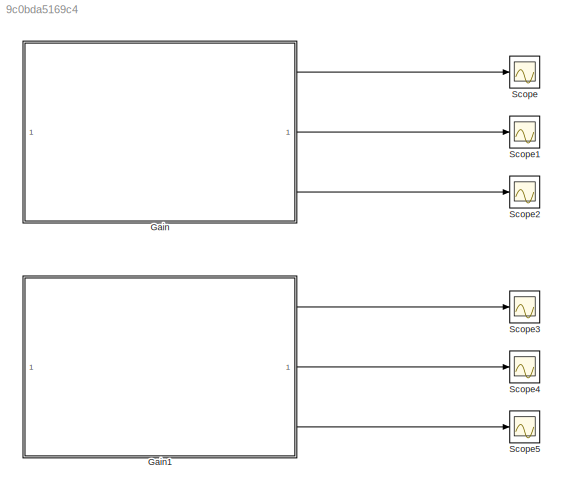
MODEL slx_9c0bda5169c4
KIND model
CONFIG AbsTol = auto
CONFIG EnableMultiTasking = off
CONFIG FixedStep = auto
CONFIG MaxStep = auto
CONFIG MinStep = auto
CONFIG RelTol = 1e-3
CONFIG SampleTimeConstraint = Unconstrained
CONFIG SolverName = FixedStepAuto
CONFIG StartTime = 0.0
CONFIG StopTime = 5.0
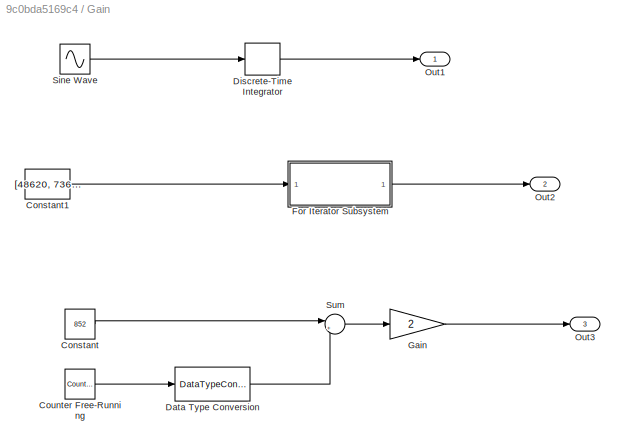
BLOCK [SubSystem] Gain
  RTWSystemCode = Reusable function
  TreatAsAtomicUnit = on
BLOCK [Constant] Gain/Constant
  OutDataTypeStr = uint32
  SampleTime = 200e-6
  Value = 852
BLOCK [Constant] Gain/Constant1
  OutDataTypeStr = single
  SampleTime = 600e-6
  Value = [48620, 736. 821, 732.492, 63.82]
BLOCK [Reference] Gain/Counter Free-Running  REF=simulink/Sources/Counter
Free-Running
  SourceBlock = simulink/Sources/Counter\nFree-Running
  SourceType = Counter Free-Running
BLOCK [DataTypeConversion] Gain/Data Type Conversion
  OutDataTypeStr = uint32
  RndMeth = Floor
  SaturateOnIntegerOverflow = off
BLOCK [DiscreteIntegrator] Gain/Discrete-Time Integrator
  ICPrevOutput = DiscIntNeverNeededParam
  ICPrevScaledInput = DiscIntNeverNeededParam
  InitialConditionSetting = Auto
  SampleTime = -1
  gainval = 2.0
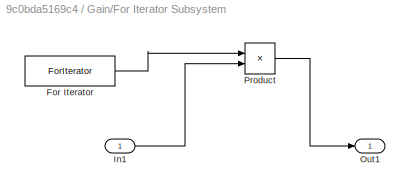
BLOCK [SubSystem] Gain/For Iterator Subsystem
  RTWSystemCode = Reusable function
  TreatAsAtomicUnit = on
BLOCK [ForIterator] Gain/For Iterator Subsystem/For Iterator
  IterationLimit = 250
BLOCK [Inport] Gain/For Iterator Subsystem/In1
BLOCK [Outport] Gain/For Iterator Subsystem/Out1
BLOCK [Product] Gain/For Iterator Subsystem/Product
BLOCK [Gain] Gain/Gain
  Gain = 2
  OutDataTypeStr = uint32
BLOCK [Outport] Gain/Out1
BLOCK [Outport] Gain/Out2
  Port = 2
BLOCK [Outport] Gain/Out3
  Port = 3
BLOCK [Sin] Gain/Sine Wave
  SampleTime = 0.001
  Samples = 20
  SineType = Sample based
BLOCK [Sum] Gain/Sum
  Inputs = |++
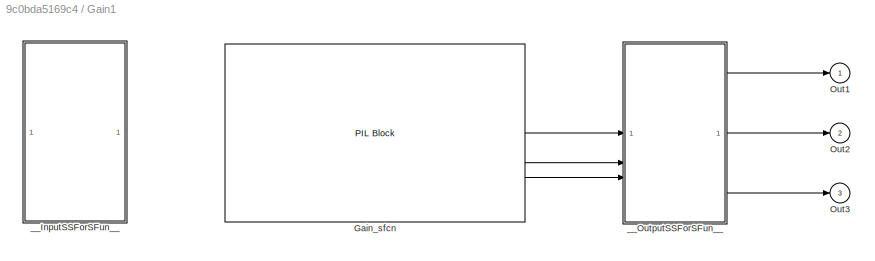
BLOCK [SubSystem] Gain1
  DialogController = pil_create_dialog
  LoadFcn = try\n   if ~strcmp(rtw.pil.getPILVersion, '24.2 (R2024b)_15')\n      set_param(gcb, 'DialogController', '');\n      set_param(gcb, 'DialogControllerArgs', '');\n   end\ncatch e\n      set_param(gcb, 'DialogController', '');\n      set_param(gcb, 'DialogControllerArgs', '');\nend
BLOCK [Reference] Gain1/Gain_sfcn  REF=pil_lib/PIL Block
  SourceBlock = pil_lib/PIL Block
  SourceType = XILBlock
BLOCK [Outport] Gain1/Out1
BLOCK [Outport] Gain1/Out2
  Port = 2
BLOCK [Outport] Gain1/Out3
  Port = 3
BLOCK [SubSystem] Gain1/__InputSSForSFun__
  PermitHierarchicalResolution = ExplicitOnly
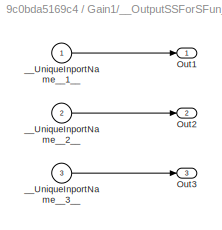
BLOCK [SubSystem] Gain1/__OutputSSForSFun__
  PermitHierarchicalResolution = ExplicitOnly
BLOCK [Outport] Gain1/__OutputSSForSFun__/Out1
BLOCK [Outport] Gain1/__OutputSSForSFun__/Out2
  Port = 2
BLOCK [Outport] Gain1/__OutputSSForSFun__/Out3
  Port = 3
BLOCK [Inport] Gain1/__OutputSSForSFun__/__UniqueInportName__1__
BLOCK [Inport] Gain1/__OutputSSForSFun__/__UniqueInportName__2__
  Port = 2
BLOCK [Inport] Gain1/__OutputSSForSFun__/__UniqueInportName__3__
  Port = 3
BLOCK [Scope] Scope
  Floating = off
  NumInputPorts = 1
  ScopeSpecificationString = Simulink.scopes.TimeScopeBlockCfg('CurrentConfiguration', extmgr.ConfigurationSet(extmgr.Configuration('Core','General UI',true),extmgr.Configuration('Core','Source UI',true),extmgr.Configuration('Sources','WiredSimulink',true),extmgr.Configuration('Visuals','Time Domain',true),extmgr.Configuration('Tools','Plot Navigation',true),extmgr.Configuration('Tools','Measurements',true)),'Version','2024b'...<+1ch>
BLOCK [Scope] Scope1
  Floating = off
  NumInputPorts = 1
  ScopeSpecificationString = Simulink.scopes.TimeScopeBlockCfg('CurrentConfiguration', extmgr.ConfigurationSet(extmgr.Configuration('Core','General UI',true),extmgr.Configuration('Core','Source UI',true),extmgr.Configuration('Sources','WiredSimulink',true,'DataLoggingVariableName','ScopeData1'),extmgr.Configuration('Visuals','Time Domain',true),extmgr.Configuration('Tools','Plot Navigation',true),extmgr.Configuration('Tools',...<+40ch>
BLOCK [Scope] Scope2
  Floating = off
  NumInputPorts = 1
  ScopeSpecificationString = Simulink.scopes.TimeScopeBlockCfg('CurrentConfiguration', extmgr.ConfigurationSet(extmgr.Configuration('Core','General UI',true),extmgr.Configuration('Core','Source UI',true),extmgr.Configuration('Sources','WiredSimulink',true,'DataLoggingVariableName','ScopeData2'),extmgr.Configuration('Visuals','Time Domain',true),extmgr.Configuration('Tools','Plot Navigation',true),extmgr.Configuration('Tools',...<+40ch>
BLOCK [Scope] Scope3
  Floating = off
  NumInputPorts = 1
  ScopeSpecificationString = Simulink.scopes.TimeScopeBlockCfg('CurrentConfiguration', extmgr.ConfigurationSet(extmgr.Configuration('Core','General UI',true),extmgr.Configuration('Core','Source UI',true),extmgr.Configuration('Sources','WiredSimulink',true,'DataLoggingVariableName','ScopeData1'),extmgr.Configuration('Visuals','Time Domain',true),extmgr.Configuration('Tools','Plot Navigation',true),extmgr.Configuration('Tools',...<+40ch>
BLOCK [Scope] Scope4
  Floating = off
  NumInputPorts = 1
  ScopeSpecificationString = Simulink.scopes.TimeScopeBlockCfg('CurrentConfiguration', extmgr.ConfigurationSet(extmgr.Configuration('Core','General UI',true),extmgr.Configuration('Core','Source UI',true),extmgr.Configuration('Sources','WiredSimulink',true,'DataLoggingVariableName','ScopeData2'),extmgr.Configuration('Visuals','Time Domain',true),extmgr.Configuration('Tools','Plot Navigation',true),extmgr.Configuration('Tools',...<+40ch>
BLOCK [Scope] Scope5
  Floating = off
  NumInputPorts = 1
  ScopeSpecificationString = Simulink.scopes.TimeScopeBlockCfg('CurrentConfiguration', extmgr.ConfigurationSet(extmgr.Configuration('Core','General UI',true),extmgr.Configuration('Core','Source UI',true),extmgr.Configuration('Sources','WiredSimulink',true,'DataLoggingVariableName','ScopeData3'),extmgr.Configuration('Visuals','Time Domain',true),extmgr.Configuration('Tools','Plot Navigation',true),extmgr.Configuration('Tools',...<+40ch>
LINE Gain/Constant1:1 -> Gain/For Iterator Subsystem:1
LINE Gain/Constant:1 -> Gain/Sum:1
LINE Gain/Counter Free-Running:1 -> Gain/Data Type Conversion:1
LINE Gain/Data Type Conversion:1 -> Gain/Sum:2
LINE Gain/Discrete-Time Integrator:1 -> Gain/Out1:1
LINE Gain/For Iterator Subsystem/For Iterator:1 -> Gain/For Iterator Subsystem/Product:1
LINE Gain/For Iterator Subsystem/In1:1 -> Gain/For Iterator Subsystem/Product:2
LINE Gain/For Iterator Subsystem/Product:1 -> Gain/For Iterator Subsystem/Out1:1
LINE Gain/For Iterator Subsystem:1 -> Gain/Out2:1
LINE Gain/Gain:1 -> Gain/Out3:1
LINE Gain/Sine Wave:1 -> Gain/Discrete-Time Integrator:1
LINE Gain/Sum:1 -> Gain/Gain:1
LINE Gain1/Gain_sfcn:1 -> Gain1/__OutputSSForSFun__:1
LINE Gain1/Gain_sfcn:2 -> Gain1/__OutputSSForSFun__:2
LINE Gain1/Gain_sfcn:3 -> Gain1/__OutputSSForSFun__:3
LINE Gain1/__OutputSSForSFun__/__UniqueInportName__1__:1 -> Gain1/__OutputSSForSFun__/Out1:1
LINE Gain1/__OutputSSForSFun__/__UniqueInportName__2__:1 -> Gain1/__OutputSSForSFun__/Out2:1
LINE Gain1/__OutputSSForSFun__/__UniqueInportName__3__:1 -> Gain1/__OutputSSForSFun__/Out3:1
LINE Gain1/__OutputSSForSFun__:1 -> Gain1/Out1:1
LINE Gain1/__OutputSSForSFun__:2 -> Gain1/Out2:1
LINE Gain1/__OutputSSForSFun__:3 -> Gain1/Out3:1
LINE Gain1:1 -> Scope3:1
LINE Gain1:2 -> Scope4:1
LINE Gain1:3 -> Scope5:1
LINE Gain:1 -> Scope:1
LINE Gain:2 -> Scope1:1
LINE Gain:3 -> Scope2:1
